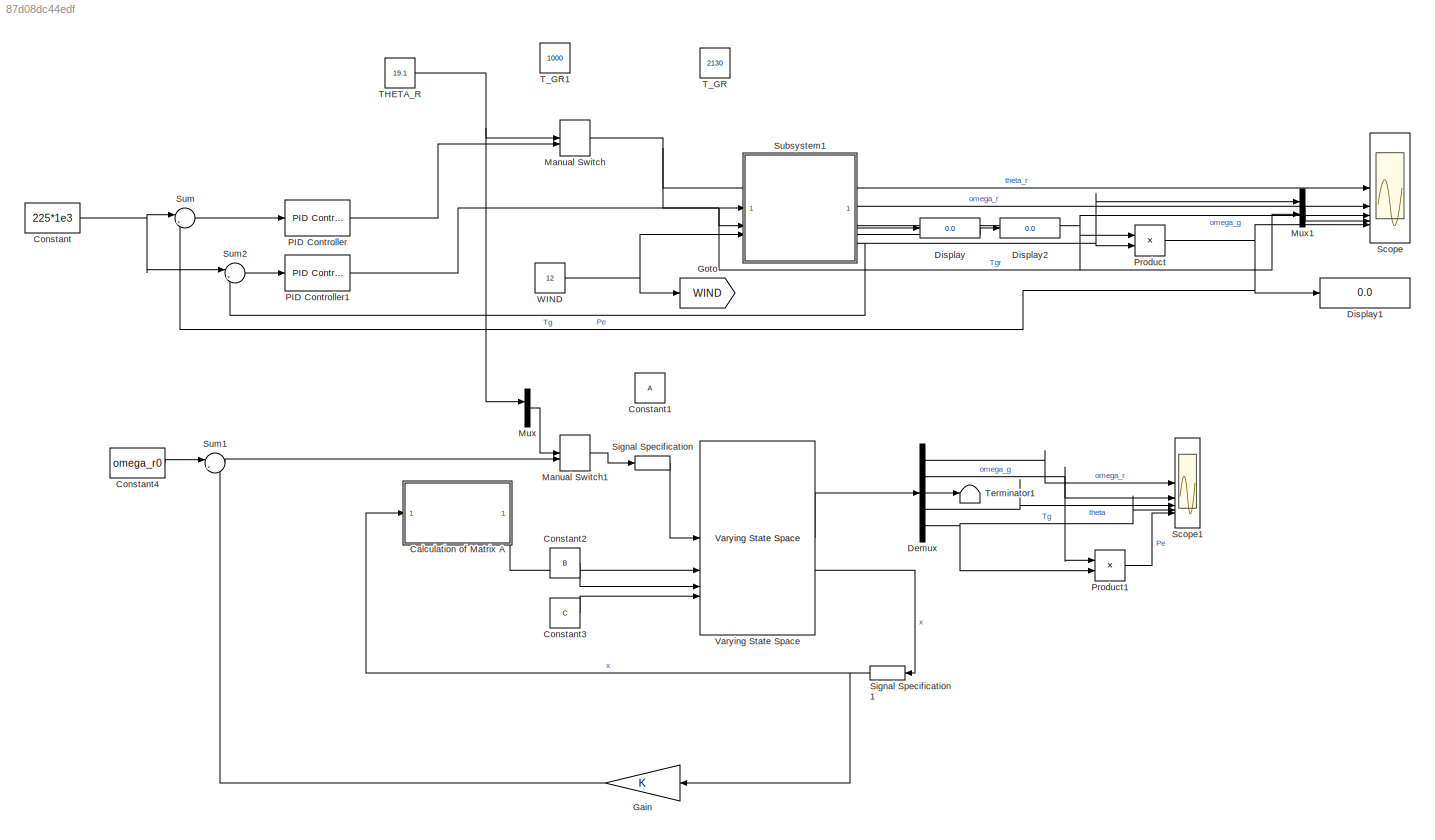
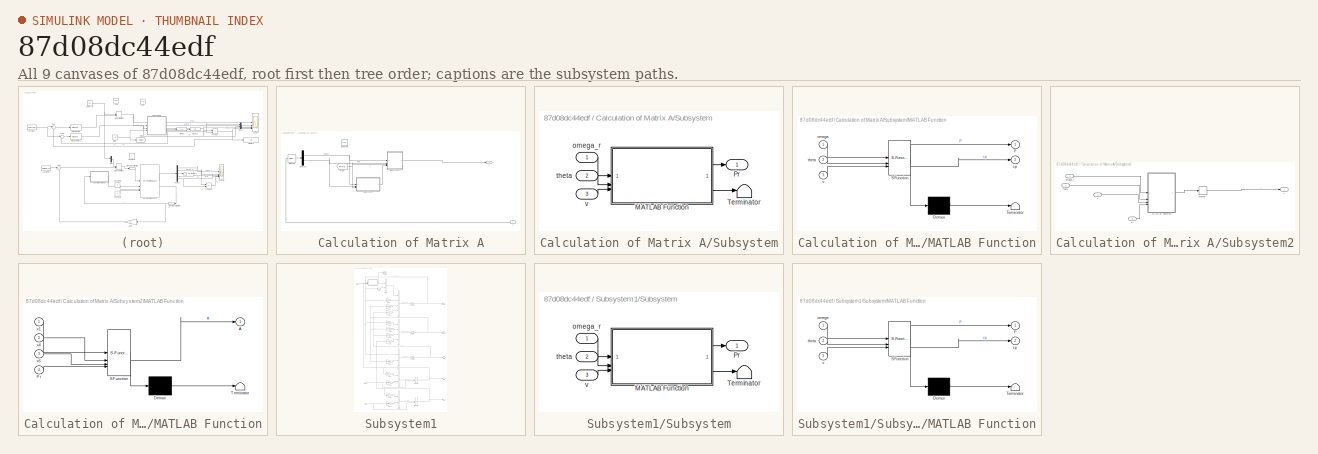
[diagram: thumbnail index - all 9 canvases of the model, root first then tree order]
MODEL slx_87d08dc44edf
KIND model
CONFIG AbsTol = auto
CONFIG EnableMultiTasking = off
CONFIG FixedStep = 1e-3
CONFIG MaxStep = auto
CONFIG MinStep = auto
CONFIG RelTol = 1e-3
CONFIG SampleTimeConstraint = Unconstrained
CONFIG SolverName = ode5
CONFIG StartTime = 0.0
CONFIG StopTime = 50
BLOCK [SubSystem] Calculation of Matrix A
  Commented = on
BLOCK [Outport] Calculation of Matrix A/A
BLOCK [Constant] Calculation of Matrix A/Constant
  Value = x0(1)
BLOCK [Demux] Calculation of Matrix A/Demux1
  Outputs = 2
BLOCK [From] Calculation of Matrix A/From
  GotoTag = WIND
  TagVisibility = global
BLOCK [Selector] Calculation of Matrix A/Selector
  IndexOptions = Index vector (dialog)
  Indices = [1 4]
  InputPortWidth = 5
  OutputSizes = 1
BLOCK [SubSystem] Calculation of Matrix A/Subsystem
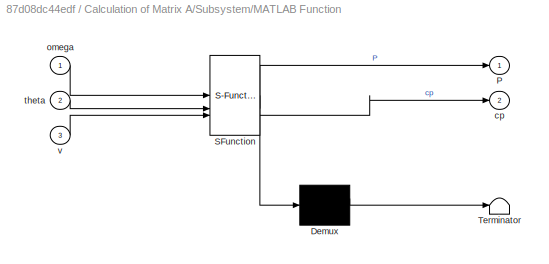
BLOCK [SubSystem] Calculation of Matrix A/Subsystem/MATLAB Function
  ErrorFcn = Stateflow.Translate.translate
  PermitHierarchicalResolution = ExplicitOnly
  SFBlockType = MATLAB Function
  TreatAsAtomicUnit = on
BLOCK [Demux] Calculation of Matrix A/Subsystem/MATLAB Function/ Demux 
  Outputs = 1
BLOCK [S-Function] Calculation of Matrix A/Subsystem/MATLAB Function/ SFunction 
  EnableBusSupport = on
  FunctionName = sf_sfun
  PortCounts = [3 3]
  SFcnIsStateOwnerBlock = off
  SFunctionDeploymentMode = off
  Tag = Stateflow S-Function 3
BLOCK [Terminator] Calculation of Matrix A/Subsystem/MATLAB Function/ Terminator 
BLOCK [Outport] Calculation of Matrix A/Subsystem/MATLAB Function/P
BLOCK [Outport] Calculation of Matrix A/Subsystem/MATLAB Function/cp
  Port = 2
BLOCK [Inport] Calculation of Matrix A/Subsystem/MATLAB Function/omega
BLOCK [Inport] Calculation of Matrix A/Subsystem/MATLAB Function/theta
  Port = 2
BLOCK [Inport] Calculation of Matrix A/Subsystem/MATLAB Function/v
  Port = 3
BLOCK [Outport] Calculation of Matrix A/Subsystem/Pr
BLOCK [Terminator] Calculation of Matrix A/Subsystem/Terminator
BLOCK [Inport] Calculation of Matrix A/Subsystem/omega_r
  NameLocation = left
BLOCK [Inport] Calculation of Matrix A/Subsystem/theta
  NameLocation = left
  Port = 2
BLOCK [Inport] Calculation of Matrix A/Subsystem/v
  NameLocation = left
  Port = 3
BLOCK [SubSystem] Calculation of Matrix A/Subsystem2
BLOCK [Outport] Calculation of Matrix A/Subsystem2/A
BLOCK [SubSystem] Calculation of Matrix A/Subsystem2/MATLAB Function
  ErrorFcn = Stateflow.Translate.translate
  PermitHierarchicalResolution = ExplicitOnly
  SFBlockType = MATLAB Function
  TreatAsAtomicUnit = on
BLOCK [Demux] Calculation of Matrix A/Subsystem2/MATLAB Function/ Demux 
  Outputs = 1
BLOCK [S-Function] Calculation of Matrix A/Subsystem2/MATLAB Function/ SFunction 
  EnableBusSupport = on
  FunctionName = sf_sfun
  Parameters = Ds,Jg,Jr,Ks,Ng,tau_T,tau_theta
  PortCounts = [4 2]
  SFcnIsStateOwnerBlock = off
  SFunctionDeploymentMode = off
  Tag = Stateflow S-Function 1
BLOCK [Terminator] Calculation of Matrix A/Subsystem2/MATLAB Function/ Terminator 
BLOCK [Outport] Calculation of Matrix A/Subsystem2/MATLAB Function/A
BLOCK [Inport] Calculation of Matrix A/Subsystem2/MATLAB Function/Pr
  Port = 4
BLOCK [Inport] Calculation of Matrix A/Subsystem2/MATLAB Function/x1
BLOCK [Inport] Calculation of Matrix A/Subsystem2/MATLAB Function/x4
  Port = 2
BLOCK [Inport] Calculation of Matrix A/Subsystem2/MATLAB Function/x6
  Port = 3
BLOCK [Memory] Calculation of Matrix A/Subsystem2/Memory
  InitialCondition = A
BLOCK [Inport] Calculation of Matrix A/Subsystem2/Pr
  Port = 4
BLOCK [Inport] Calculation of Matrix A/Subsystem2/omega_r
BLOCK [Inport] Calculation of Matrix A/Subsystem2/theta
  Port = 2
BLOCK [Inport] Calculation of Matrix A/Subsystem2/v
  Port = 3
BLOCK [Inport] Calculation of Matrix A/x
BLOCK [Constant] Constant
  Value = 225*1e3
BLOCK [Constant] Constant1
  Value = A
BLOCK [Constant] Constant2
  Commented = on
  Value = B
BLOCK [Constant] Constant3
  Commented = on
  Value = C
BLOCK [Constant] Constant4
  Commented = on
  Value = omega_r0
BLOCK [Demux] Demux
  Commented = on
  Outputs = 5
BLOCK [Display] Display
  Decimation = 1
BLOCK [Display] Display1
  Decimation = 1
BLOCK [Display] Display2
  Decimation = 1
BLOCK [Gain] Gain
  Commented = on
  Gain = K
  Multiplication = Matrix(K*u)
  NameLocation = top
BLOCK [Goto] Goto
  GotoTag = WIND
  TagVisibility = global
BLOCK [ManualSwitch] Manual Switch
  CurrentSetting = 0
BLOCK [ManualSwitch] Manual Switch1
  Commented = on
  CurrentSetting = 0
BLOCK [Mux] Mux
  Commented = on
  DisplayOption = bar
  Inputs = 2
BLOCK [Mux] Mux1
  DisplayOption = bar
  Inputs = 2
BLOCK [Reference] PID Controller  REF=slpidlib/PID Controller
  LibrarySourceBlock = simulink/Continuous/PID Controller
  SourceBlock = slpidlib/PID Controller
  SourceType = PID 1dof
BLOCK [Reference] PID Controller1  REF=slpidlib/PID Controller
  LibrarySourceBlock = simulink/Continuous/PID Controller
  SourceBlock = slpidlib/PID Controller
  SourceType = PID 1dof
BLOCK [Product] Product
BLOCK [Product] Product1
  Commented = on
BLOCK [Scope] Scope
  Floating = off
  NumInputPorts = 5
  ScopeSpecificationString = Simulink.scopes.TimeScopeBlockCfg('CurrentConfiguration', extmgr.ConfigurationSet(extmgr.Configuration('Core','General UI',true),extmgr.Configuration('Core','Source UI',true),extmgr.Configuration('Sources','WiredSimulink',true),extmgr.Configuration('Visuals','Time Domain',true,'SerializedDisplays',{struct('MinYLimReal','15.00000','MaxYLimReal','35.00000','YLabelReal','','MinYLimMag','15.00000','Ma...<+4779ch>
BLOCK [Scope] Scope1
  Commented = on
  Floating = off
  NumInputPorts = 5
  ScopeSpecificationString = Simulink.scopes.TimeScopeBlockCfg('CurrentConfiguration', extmgr.ConfigurationSet(extmgr.Configuration('Core','General UI',true),extmgr.Configuration('Core','Source UI',true),extmgr.Configuration('Sources','WiredSimulink',true,'DataLoggingVariableName','ScopeData1'),extmgr.Configuration('Visuals','Time Domain',true,'SerializedDisplays',{struct('MinYLimReal','-1.85963','MaxYLimReal','4.97329','YLab...<+4848ch>
BLOCK [SignalSpecification] Signal Specification
  Commented = on
  Dimensions = [2 1]
BLOCK [SignalSpecification] Signal Specification1
  Commented = on
  Dimensions = [5 1]
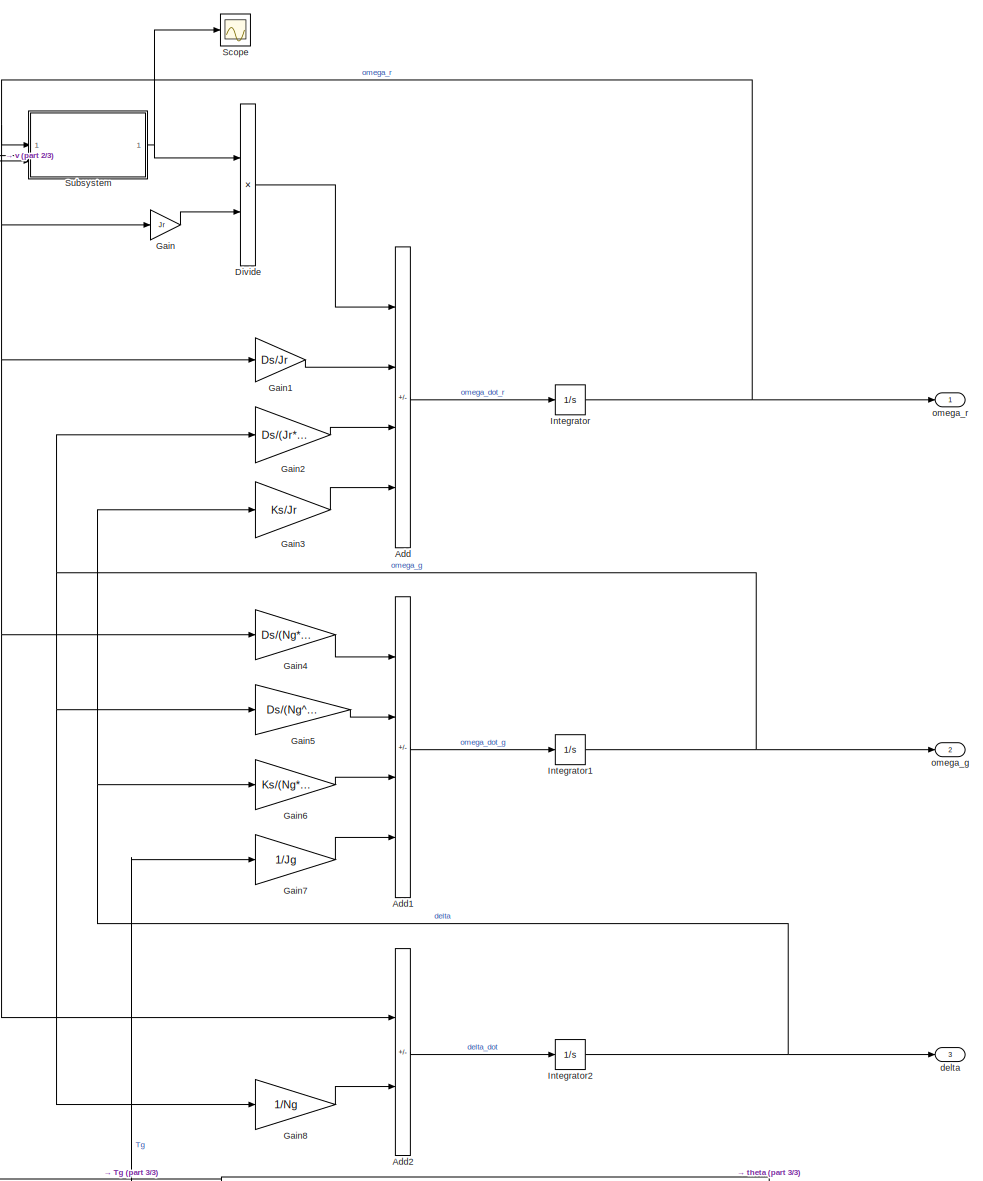
[diagram: Subsystem1 - part 1/3, full width, middle band]
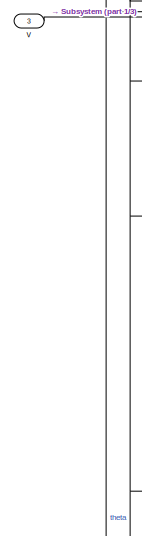
[diagram: Subsystem1 - part 2/3, top left region]
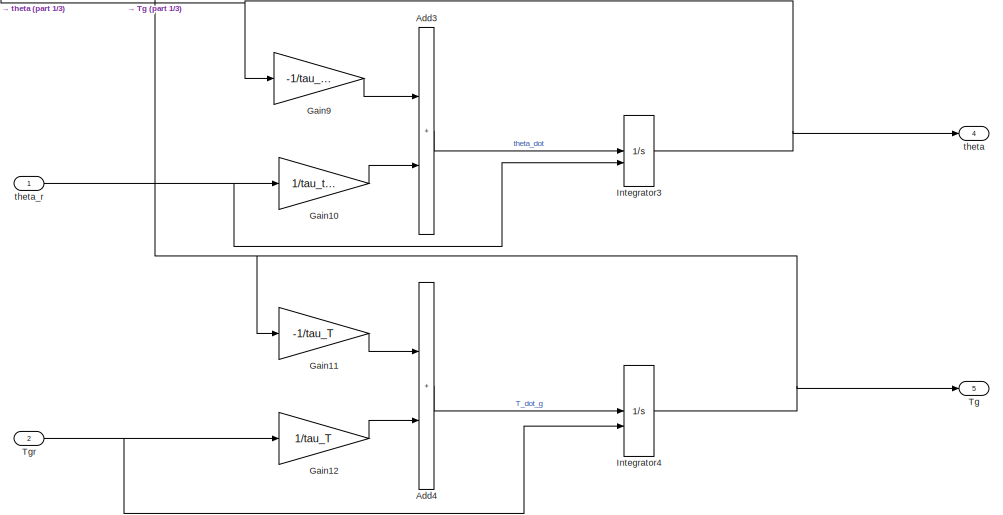
[diagram: Subsystem1 - part 3/3, full width, bottom band]
BLOCK [SubSystem] Subsystem1
BLOCK [Sum] Subsystem1/Add
  IconShape = rectangular
  Inputs = +-+-
BLOCK [Sum] Subsystem1/Add1
  IconShape = rectangular
  Inputs = +-+-
BLOCK [Sum] Subsystem1/Add2
  IconShape = rectangular
  Inputs = +-
BLOCK [Sum] Subsystem1/Add3
  IconShape = rectangular
BLOCK [Sum] Subsystem1/Add4
  IconShape = rectangular
BLOCK [Product] Subsystem1/Divide
  Inputs = */
BLOCK [Gain] Subsystem1/Gain
  Gain = Jr
BLOCK [Gain] Subsystem1/Gain1
  Gain = Ds/Jr
BLOCK [Gain] Subsystem1/Gain10
  Gain = 1/tau_theta
BLOCK [Gain] Subsystem1/Gain11
  Gain = -1/tau_T
BLOCK [Gain] Subsystem1/Gain12
  Gain = 1/tau_T
BLOCK [Gain] Subsystem1/Gain2
  Gain = Ds/(Jr*Ng)
BLOCK [Gain] Subsystem1/Gain3
  Gain = Ks/Jr
BLOCK [Gain] Subsystem1/Gain4
  Gain = Ds/(Ng*Jg)
BLOCK [Gain] Subsystem1/Gain5
  Gain = Ds/(Ng^2*Jg)
BLOCK [Gain] Subsystem1/Gain6
  Gain = Ks/(Ng*Jg)
BLOCK [Gain] Subsystem1/Gain7
  Gain = 1/Jg
BLOCK [Gain] Subsystem1/Gain8
  Gain = 1/Ng
BLOCK [Gain] Subsystem1/Gain9
  Gain = -1/tau_theta
BLOCK [Integrator] Subsystem1/Integrator
  InitialCondition = omega_r0
BLOCK [Integrator] Subsystem1/Integrator1
  InitialCondition = omega_g0
BLOCK [Integrator] Subsystem1/Integrator2
  InitialCondition = 6.55*1e-3
BLOCK [Integrator] Subsystem1/Integrator3
  InitialConditionSource = external
BLOCK [Integrator] Subsystem1/Integrator4
  InitialCondition = 2130
  InitialConditionSource = external
BLOCK [Scope] Subsystem1/Scope
  Floating = off
  NumInputPorts = 1
  ScopeSpecificationString = Simulink.scopes.TimeScopeBlockCfg('CurrentConfiguration', extmgr.ConfigurationSet(extmgr.Configuration('Core','General UI',true),extmgr.Configuration('Core','Source UI',true),extmgr.Configuration('Sources','WiredSimulink',true,'DataLoggingVariableName','ScopeData2'),extmgr.Configuration('Visuals','Time Domain',true,'SerializedDisplays',{struct('MinYLimReal','-221509.75902','MaxYLimReal','88153.463...<+1404ch>
BLOCK [SubSystem] Subsystem1/Subsystem
BLOCK [SubSystem] Subsystem1/Subsystem/MATLAB Function
  ErrorFcn = Stateflow.Translate.translate
  PermitHierarchicalResolution = ExplicitOnly
  SFBlockType = MATLAB Function
  TreatAsAtomicUnit = on
BLOCK [Demux] Subsystem1/Subsystem/MATLAB Function/ Demux 
  Outputs = 1
BLOCK [S-Function] Subsystem1/Subsystem/MATLAB Function/ SFunction 
  EnableBusSupport = on
  FunctionName = sf_sfun
  PortCounts = [3 3]
  SFcnIsStateOwnerBlock = off
  SFunctionDeploymentMode = off
  Tag = Stateflow S-Function 2
BLOCK [Terminator] Subsystem1/Subsystem/MATLAB Function/ Terminator 
BLOCK [Outport] Subsystem1/Subsystem/MATLAB Function/P
BLOCK [Outport] Subsystem1/Subsystem/MATLAB Function/cp
  Port = 2
BLOCK [Inport] Subsystem1/Subsystem/MATLAB Function/omega
BLOCK [Inport] Subsystem1/Subsystem/MATLAB Function/theta
  Port = 2
BLOCK [Inport] Subsystem1/Subsystem/MATLAB Function/v
  Port = 3
BLOCK [Outport] Subsystem1/Subsystem/Pr
BLOCK [Terminator] Subsystem1/Subsystem/Terminator
BLOCK [Inport] Subsystem1/Subsystem/omega_r
  NameLocation = left
BLOCK [Inport] Subsystem1/Subsystem/theta
  NameLocation = left
  Port = 2
BLOCK [Inport] Subsystem1/Subsystem/v
  NameLocation = left
  Port = 3
BLOCK [Outport] Subsystem1/Tg
  Port = 5
BLOCK [Inport] Subsystem1/Tgr
  Port = 2
BLOCK [Outport] Subsystem1/delta
  Port = 3
BLOCK [Outport] Subsystem1/omega_g
  Port = 2
BLOCK [Outport] Subsystem1/omega_r
BLOCK [Outport] Subsystem1/theta
  Port = 4
BLOCK [Inport] Subsystem1/theta_r
BLOCK [Inport] Subsystem1/v
  Port = 3
BLOCK [Sum] Sum
  Inputs = |+-
BLOCK [Sum] Sum1
  Commented = on
  Inputs = |+-
BLOCK [Sum] Sum2
  Inputs = |+-
BLOCK [Constant] THETA_R
  Value = 19.1
BLOCK [Constant] T_GR
  Value = 2130
BLOCK [Constant] T_GR1
  Value = 1000
BLOCK [Terminator] Terminator1
  Commented = on
BLOCK [Reference] Varying State Space  REF=cstblocks/Linear Parameter Varying/Varying State Space
  Commented = on
  SourceBlock = cstblocks/Linear Parameter Varying/Varying State Space
  SourceType = Varying State Space
BLOCK [Constant] WIND
  Value = 12
NET Calculation of Matrix A/Demux1:1 -> Calculation of Matrix A/Subsystem2:1, Calculation of Matrix A/Subsystem:1
NET Calculation of Matrix A/Demux1:2 -> Calculation of Matrix A/Subsystem2:2, Calculation of Matrix A/Subsystem:2
NET Calculation of Matrix A/From:1 -> Calculation of Matrix A/Subsystem2:3, Calculation of Matrix A/Subsystem:3
LINE Calculation of Matrix A/Selector:1 -> Calculation of Matrix A/Demux1:1
LINE Calculation of Matrix A/Subsystem/MATLAB Function:1 -> Calculation of Matrix A/Subsystem/Pr:1
LINE Calculation of Matrix A/Subsystem/MATLAB Function:2 -> Calculation of Matrix A/Subsystem/Terminator:1
LINE Calculation of Matrix A/Subsystem/omega_r:1 -> Calculation of Matrix A/Subsystem/MATLAB Function:1
LINE Calculation of Matrix A/Subsystem/theta:1 -> Calculation of Matrix A/Subsystem/MATLAB Function:2
LINE Calculation of Matrix A/Subsystem/v:1 -> Calculation of Matrix A/Subsystem/MATLAB Function:3
LINE Calculation of Matrix A/Subsystem2/MATLAB Function:1 -> Calculation of Matrix A/Subsystem2/Memory:1
LINE Calculation of Matrix A/Subsystem2/Memory:1 -> Calculation of Matrix A/Subsystem2/A:1
LINE Calculation of Matrix A/Subsystem2/Pr:1 -> Calculation of Matrix A/Subsystem2/MATLAB Function:4
LINE Calculation of Matrix A/Subsystem2/omega_r:1 -> Calculation of Matrix A/Subsystem2/MATLAB Function:1
LINE Calculation of Matrix A/Subsystem2/theta:1 -> Calculation of Matrix A/Subsystem2/MATLAB Function:2
LINE Calculation of Matrix A/Subsystem2/v:1 -> Calculation of Matrix A/Subsystem2/MATLAB Function:3
LINE Calculation of Matrix A/Subsystem2:1 -> Calculation of Matrix A/A:1
LINE Calculation of Matrix A/Subsystem:1 -> Calculation of Matrix A/Subsystem2:4
LINE Calculation of Matrix A/x:1 -> Calculation of Matrix A/Selector:1
LINE Calculation of Matrix A:1 -> Varying State Space:2
LINE Constant2:1 -> Varying State Space:3
LINE Constant3:1 -> Varying State Space:4
LINE Constant4:1 -> Sum1:1
NET Constant:1 -> Sum2:1, Sum:1
LINE Demux:1 -> Scope1:1
NET Demux:2 -> Product1:1, Scope1:2
LINE Demux:3 -> Terminator1:1
LINE Demux:4 -> Scope1:3
NET Demux:5 -> Product1:2, Scope1:4
LINE Gain:1 -> Sum1:2
LINE Manual Switch1:1 -> Signal Specification:1
NET Manual Switch:1 -> Scope:1, Subsystem1:1
LINE Mux1:1 -> Scope:4
LINE Mux:1 -> Manual Switch1:1
NET PID Controller1:1 -> Mux1:2, Subsystem1:2
LINE PID Controller:1 -> Manual Switch:2
LINE Product1:1 -> Scope1:5
NET Product:1 -> Display1:1, Scope:5, Sum:2
NET Signal Specification1:1 -> Calculation of Matrix A:1, Gain:1
LINE Signal Specification:1 -> Varying State Space:1
LINE Subsystem1/Add1:1 -> Subsystem1/Integrator1:1
LINE Subsystem1/Add2:1 -> Subsystem1/Integrator2:1
LINE Subsystem1/Add3:1 -> Subsystem1/Integrator3:1
LINE Subsystem1/Add4:1 -> Subsystem1/Integrator4:1
LINE Subsystem1/Add:1 -> Subsystem1/Integrator:1
LINE Subsystem1/Divide:1 -> Subsystem1/Add:1
LINE Subsystem1/Gain10:1 -> Subsystem1/Add3:2
LINE Subsystem1/Gain11:1 -> Subsystem1/Add4:1
LINE Subsystem1/Gain12:1 -> Subsystem1/Add4:2
LINE Subsystem1/Gain1:1 -> Subsystem1/Add:2
LINE Subsystem1/Gain2:1 -> Subsystem1/Add:3
LINE Subsystem1/Gain3:1 -> Subsystem1/Add:4
LINE Subsystem1/Gain4:1 -> Subsystem1/Add1:1
LINE Subsystem1/Gain5:1 -> Subsystem1/Add1:2
LINE Subsystem1/Gain6:1 -> Subsystem1/Add1:3
LINE Subsystem1/Gain7:1 -> Subsystem1/Add1:4
LINE Subsystem1/Gain8:1 -> Subsystem1/Add2:2
LINE Subsystem1/Gain9:1 -> Subsystem1/Add3:1
LINE Subsystem1/Gain:1 -> Subsystem1/Divide:2
NET Subsystem1/Integrator1:1 -> Subsystem1/Gain2:1, Subsystem1/Gain5:1, Subsystem1/Gain8:1, Subsystem1/omega_g:1
NET Subsystem1/Integrator2:1 -> Subsystem1/Gain3:1, Subsystem1/Gain6:1, Subsystem1/delta:1
NET Subsystem1/Integrator3:1 -> Subsystem1/Gain9:1, Subsystem1/Subsystem:2, Subsystem1/theta:1
NET Subsystem1/Integrator4:1 -> Subsystem1/Gain11:1, Subsystem1/Gain7:1, Subsystem1/Tg:1
NET Subsystem1/Integrator:1 -> Subsystem1/Add2:1, Subsystem1/Gain1:1, Subsystem1/Gain4:1, Subsystem1/Gain:1, Subsystem1/Subsystem:1, Subsystem1/omega_r:1
LINE Subsystem1/Subsystem/MATLAB Function:1 -> Subsystem1/Subsystem/Pr:1
LINE Subsystem1/Subsystem/MATLAB Function:2 -> Subsystem1/Subsystem/Terminator:1
LINE Subsystem1/Subsystem/omega_r:1 -> Subsystem1/Subsystem/MATLAB Function:1
LINE Subsystem1/Subsystem/theta:1 -> Subsystem1/Subsystem/MATLAB Function:2
LINE Subsystem1/Subsystem/v:1 -> Subsystem1/Subsystem/MATLAB Function:3
NET Subsystem1/Subsystem:1 -> Subsystem1/Divide:1, Subsystem1/Scope:1
NET Subsystem1/Tgr:1 -> Subsystem1/Gain12:1, Subsystem1/Integrator4:2
NET Subsystem1/theta_r:1 -> Subsystem1/Gain10:1, Subsystem1/Integrator3:2
LINE Subsystem1/v:1 -> Subsystem1/Subsystem:3
LINE Subsystem1:1 -> Scope:2
NET Subsystem1:2 -> Product:1, Scope:3
LINE Subsystem1:3 -> Display2:1
LINE Subsystem1:4 -> Display:1
NET Subsystem1:5 -> Mux1:1, Product:2, Sum2:2
LINE Sum1:1 -> Manual Switch1:2
LINE Sum2:1 -> PID Controller1:1
LINE Sum:1 -> PID Controller:1
NET THETA_R:1 -> Manual Switch:1, Mux:1
LINE Varying State Space:1 -> Demux:1
LINE Varying State Space:2 -> Signal Specification1:1
NET WIND:1 -> Goto:1, Subsystem1:3
note: NET lines group one-source signal fan-out (src -> all destinations, sorted); 1:1 wires keep LINE
CHART Calculation of Matrix A/Subsystem2/MATLAB Function states=1 transitions=1
  STATE_LABEL 'eML_blk_kernel()'
  STATE_LABEL 'SCRIPT:\nfunction A  = getMatrixA(x1,x4,x6,Pr,Jr, Ds, Ng, tau_theta, tau_T, Ks, Jg)\n\nF1 = - (23340273*x6^2*pi*exp(7/(160*((27*x4^3)/8 + 1)) - 25/(2*((3*x4)/25 + (29*x1)/(2*x6)))))/(500*((3*x4)/25 + (29*x1)/(2*x6))^2) - (365835*x6^2*pi*exp(7/(160*((27*x4^3)/8 + 1)) - 25/(2*((3*x4)/25 + (29*x1)/(2*x6))))*((33*x4)/250 - 638/(25*((3*x4)/25 + (29*x1)/(2*x6))) + 2233/(25000*((27*x4^3)/8 + 1)) + 11/10))/(...<+708ch>'
CHART Subsystem1/Subsystem/MATLAB Function states=1 transitions=1
  STATE_LABEL 'eML_blk_kernel()'
  STATE_LABEL 'SCRIPT:\nfunction [P,cp] = getAerodynamics(omega,theta,v)\n\nR = 14.5;\nrho = 1.2;\n\nlambda = v/(R*omega);\nlambda_t = 1/(1/(lambda^-1 + 0.12*theta) - 0.0035/((1.5*theta)^3 + 1));\n\ncp = 0.22*(116/lambda_t - 0.6*theta - 5)*exp(-12.5/lambda_t);\n\nP = 1/2*rho*pi*(R^2)*(v^3)*cp;\n'
CHART Calculation of Matrix A/Subsystem/MATLAB Function states=1 transitions=1
  STATE_LABEL 'eML_blk_kernel()'
  STATE_LABEL 'SCRIPT:\nfunction [P,cp] = getAerodynamics(omega,theta,v)\n\nR = 14.5;\nrho = 1.2;\n\nlambda = v/(R*omega);\nlambda_t = 1/(1/(lambda^-1 + 0.12*theta) - 0.0035/((1.5*theta)^3 + 1));\n\ncp = 0.22*(116/lambda_t - 0.6*theta - 5)*exp(-12.5/lambda_t);\n\nP = 1/2*rho*pi*(R^2)*(v^3)*cp;\n'
CHART  states=0 transitions=0
CHART  states=0 transitions=0
CHART  states=0 transitions=0
